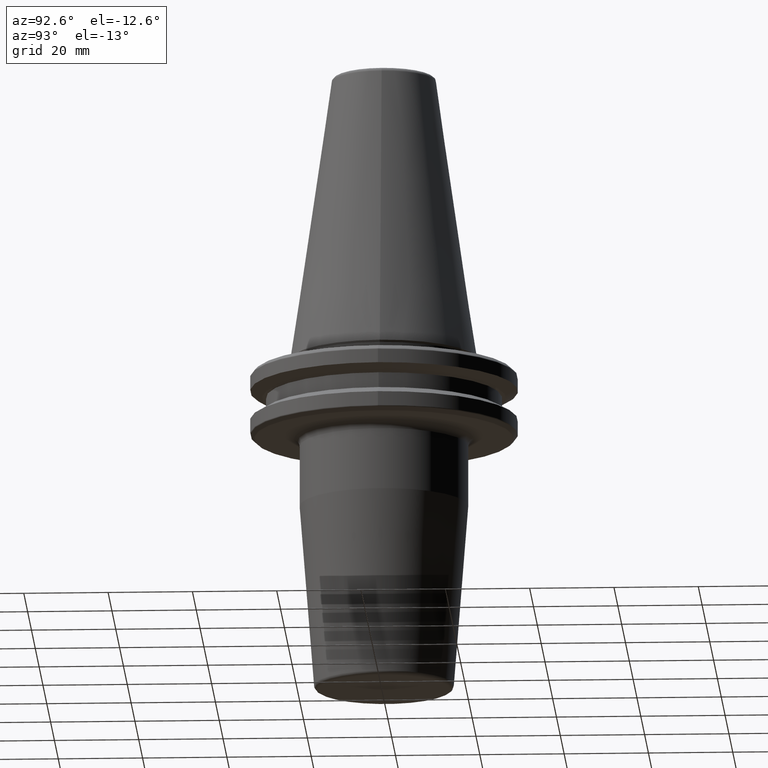
[diagram: clean part render]
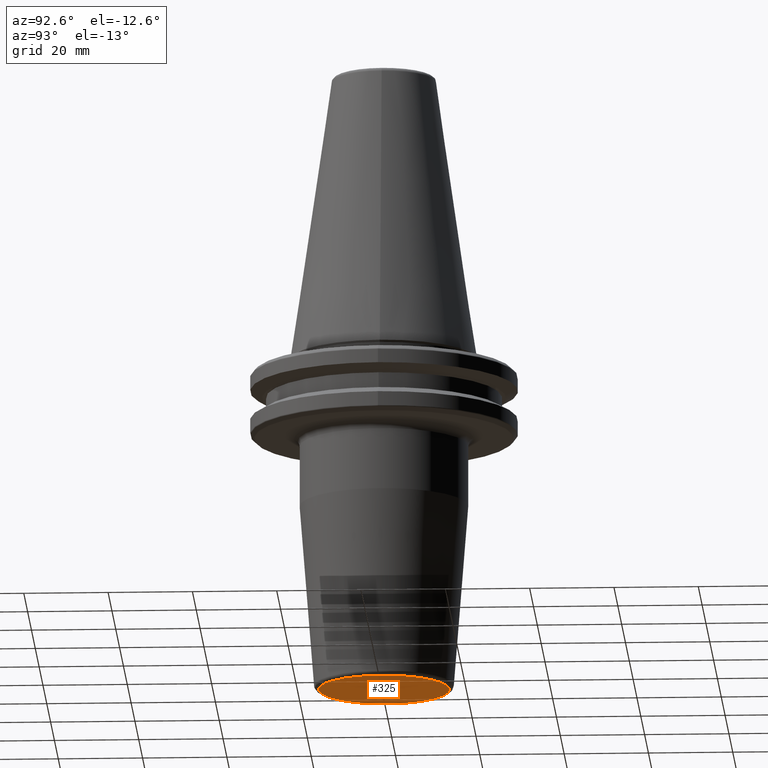
[diagram: same view with one face highlighted and labeled with its STEP entity id]
A machine part, auxiliary view. The second image highlights one B-rep face of the part: STEP entity #325.
In plain terms, the highlighted planar face has unit normal (-0, 0, -1).
Its self-contained STEP definition (entity closure, byte-faithful):
#104 = AXIS2_PLACEMENT_3D ( 'NONE', #830, #265, #924 ) ;
#164 = AXIS2_PLACEMENT_3D ( 'NONE', #873, #504, #1071 ) ;
#265 = DIRECTION ( 'NONE',  ( -0.0000000000000000000, 2.829168385244881300E-016, -1.000000000000000000 ) ) ;
#275 = PLANE ( 'NONE',  #164 ) ;
#294 = CIRCLE ( 'NONE', #104, 15.57560950834179500 ) ;
#325 = ADVANCED_FACE ( 'NONE', ( #448 ), #275, .T. ) ;
#389 = AXIS2_PLACEMENT_3D ( 'NONE', #1009, #423, #1098 ) ;
#423 = DIRECTION ( 'NONE',  ( -0.0000000000000000000, 2.829168385244881300E-016, -1.000000000000000000 ) ) ;
#443 = CARTESIAN_POINT ( 'NONE',  ( 0.0000000000000000000, 15.57560950834179500, -80.00000000000000000 ) ) ;
#448 = FACE_OUTER_BOUND ( 'NONE', #490, .T. ) ;
#490 = EDGE_LOOP ( 'NONE', ( #1187, #747 ) ) ;
#504 = DIRECTION ( 'NONE',  ( -0.0000000000000000000, 2.829168385244881300E-016, -1.000000000000000000 ) ) ;
#547 = VERTEX_POINT ( 'NONE', #790 ) ;
#747 = ORIENTED_EDGE ( 'NONE', *, *, #981, .T. ) ;
#790 = CARTESIAN_POINT ( 'NONE',  ( 1.968505614004525100E-015, -15.57560950834179500, -80.00000000000000000 ) ) ;
#815 = VERTEX_POINT ( 'NONE', #443 ) ;
#830 = CARTESIAN_POINT ( 'NONE',  ( 0.0000000000000000000, -6.839794164566892900E-018, -80.00000000000000000 ) ) ;
#873 = CARTESIAN_POINT ( 'NONE',  ( 0.0000000000000000000, 15.57560950834179500, -80.00000000000000000 ) ) ;
#924 = DIRECTION ( 'NONE',  ( 0.0000000000000000000, 1.000000000000000000, 0.0000000000000000000 ) ) ;
#981 = EDGE_CURVE ( 'NONE', #547, #815, #1224, .T. ) ;
#1009 = CARTESIAN_POINT ( 'NONE',  ( 0.0000000000000000000, -6.839794164566892900E-018, -80.00000000000000000 ) ) ;
#1071 = DIRECTION ( 'NONE',  ( 0.0000000000000000000, 1.000000000000000000, 2.829168385244881300E-016 ) ) ;
#1098 = DIRECTION ( 'NONE',  ( 0.0000000000000000000, 1.000000000000000000, 0.0000000000000000000 ) ) ;
#1103 = EDGE_CURVE ( 'NONE', #815, #547, #294, .T. ) ;
#1187 = ORIENTED_EDGE ( 'NONE', *, *, #1103, .T. ) ;
#1224 = CIRCLE ( 'NONE', #389, 15.57560950834179500 ) ;